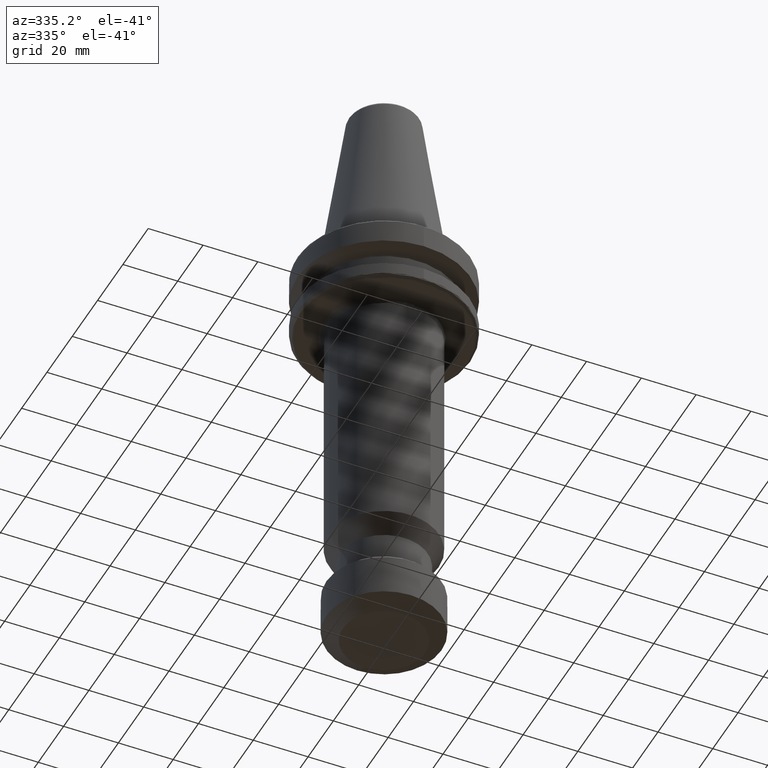
[diagram: clean part render]
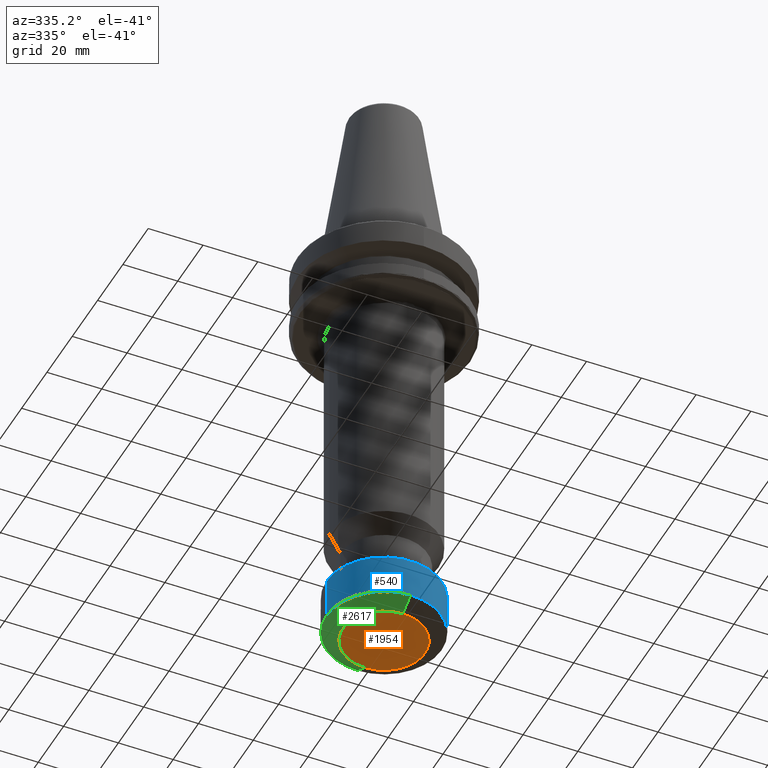
[diagram: same view with three faces highlighted in distinct colors, each labeled with its STEP entity id]
A machine part, auxiliary view with three faces highlighted in distinct colors.
Their STEP definitions:

[orange] entity #1954 — the highlighted planar face has unit normal (0, 0, 1).
#235 = ORIENTED_EDGE ( 'NONE', *, *, #1980, .T. ) ;
#290 = AXIS2_PLACEMENT_3D ( 'NONE', #3194, #3189, #3181 ) ;
#505 = CARTESIAN_POINT ( 'NONE',  ( 0.0000000000000000000, 1.204597519437111000E-029, -160.0000000000000000 ) ) ;
#510 = DIRECTION ( 'NONE',  ( -0.0000000000000000000, 9.251858538542973800E-016, -1.000000000000000000 ) ) ;
#513 = DIRECTION ( 'NONE',  ( 0.0000000000000000000, -1.000000000000000000, 0.0000000000000000000 ) ) ;
#665 = EDGE_LOOP ( 'NONE', ( #235, #2594 ) ) ;
#666 = CARTESIAN_POINT ( 'NONE',  ( 0.0000000000000000000, -14.99999999999997700, -160.0000000000000000 ) ) ;
#725 = EDGE_CURVE ( 'NONE', #941, #899, #2200, .T. ) ;
#740 = AXIS2_PLACEMENT_3D ( 'NONE', #3312, #3240, #3232 ) ;
#823 = CARTESIAN_POINT ( 'NONE',  ( 2.204364238465233900E-015, 14.99999999999997700, -160.0000000000000000 ) ) ;
#899 = VERTEX_POINT ( 'NONE', #666 ) ;
#941 = VERTEX_POINT ( 'NONE', #823 ) ;
#1317 = AXIS2_PLACEMENT_3D ( 'NONE', #505, #510, #513 ) ;
#1707 = FACE_OUTER_BOUND ( 'NONE', #665, .T. ) ;
#1954 = ADVANCED_FACE ( 'NONE', ( #1707 ), #3247, .F. ) ;
#1980 = EDGE_CURVE ( 'NONE', #899, #941, #3161, .T. ) ;
#2200 = CIRCLE ( 'NONE', #1317, 14.99999999999997700 ) ;
#2594 = ORIENTED_EDGE ( 'NONE', *, *, #725, .T. ) ;
#3161 = CIRCLE ( 'NONE', #290, 14.99999999999997700 ) ;
#3181 = DIRECTION ( 'NONE',  ( 0.0000000000000000000, -1.000000000000000000, 0.0000000000000000000 ) ) ;
#3189 = DIRECTION ( 'NONE',  ( -0.0000000000000000000, 9.251858538542973800E-016, -1.000000000000000000 ) ) ;
#3194 = CARTESIAN_POINT ( 'NONE',  ( 0.0000000000000000000, 1.204597519437111000E-029, -160.0000000000000000 ) ) ;
#3232 = DIRECTION ( 'NONE',  ( 1.000000000000000000, 0.0000000000000000000, 0.0000000000000000000 ) ) ;
#3240 = DIRECTION ( 'NONE',  ( 0.0000000000000000000, 0.0000000000000000000, 1.000000000000000000 ) ) ;
#3247 = PLANE ( 'NONE',  #740 ) ;
#3312 = CARTESIAN_POINT ( 'NONE',  ( -15.18000000000000100, -15.18000000000000100, -160.0000000000000000 ) ) ;

[blue] entity #540 — the highlighted cylindrical surface (partial cylindrical patch) has radius 21 mm, axis along (0, -0, 1).
#22 = CARTESIAN_POINT ( 'NONE',  ( 21.00000000000000000, 2.571758278209441700E-015, -141.5000000000000300 ) ) ;
#96 = ORIENTED_EDGE ( 'NONE', *, *, #3221, .F. ) ;
#137 = ORIENTED_EDGE ( 'NONE', *, *, #233, .T. ) ;
#153 = CYLINDRICAL_SURFACE ( 'NONE', #2322, 21.00000000000000000 ) ;
#214 = DIRECTION ( 'NONE',  ( 1.000000000000000000, 0.0000000000000000000, 0.0000000000000000000 ) ) ;
#233 = EDGE_CURVE ( 'NONE', #3114, #2721, #2238, .T. ) ;
#257 = ORIENTED_EDGE ( 'NONE', *, *, #1116, .F. ) ;
#477 = VECTOR ( 'NONE', #635, 1000.000000000000000 ) ;
#486 = DIRECTION ( 'NONE',  ( 1.000000000000000000, 0.0000000000000000000, 0.0000000000000000000 ) ) ;
#540 = ADVANCED_FACE ( 'NONE', ( #1288 ), #153, .T. ) ;
#613 = CARTESIAN_POINT ( 'NONE',  ( 21.00000000000000000, 0.0000000000000000000, -156.5358983850000500 ) ) ;
#635 = DIRECTION ( 'NONE',  ( 0.0000000000000000000, -0.0000000000000000000, 1.000000000000000000 ) ) ;
#733 = VECTOR ( 'NONE', #1037, 1000.000000000000000 ) ;
#832 = EDGE_CURVE ( 'NONE', #2233, #2653, #1780, .T. ) ;
#988 = CARTESIAN_POINT ( 'NONE',  ( -21.00000000000000000, 0.0000000000000000000, -141.5000000000000300 ) ) ;
#1025 = CARTESIAN_POINT ( 'NONE',  ( -21.00000000000000000, 2.571758278209441700E-015, -156.5358983850000500 ) ) ;
#1037 = DIRECTION ( 'NONE',  ( 0.0000000000000000000, -0.0000000000000000000, 1.000000000000000000 ) ) ;
#1065 = CIRCLE ( 'NONE', #1718, 20.99999999999999600 ) ;
#1098 = VERTEX_POINT ( 'NONE', #988 ) ;
#1116 = EDGE_CURVE ( 'NONE', #3114, #1098, #1353, .T. ) ;
#1163 = DIRECTION ( 'NONE',  ( 0.0000000000000000000, -0.0000000000000000000, 1.000000000000000000 ) ) ;
#1178 = CARTESIAN_POINT ( 'NONE',  ( 0.0000000000000000000, 0.0000000000000000000, -156.5358983850000500 ) ) ;
#1254 = EDGE_CURVE ( 'NONE', #2721, #2233, #1065, .T. ) ;
#1288 = FACE_OUTER_BOUND ( 'NONE', #1365, .T. ) ;
#1353 = LINE ( 'NONE', #1025, #733 ) ;
#1365 = EDGE_LOOP ( 'NONE', ( #257, #137, #2468, #1797, #96 ) ) ;
#1450 = DIRECTION ( 'NONE',  ( 1.000000000000000000, 0.0000000000000000000, 0.0000000000000000000 ) ) ;
#1718 = AXIS2_PLACEMENT_3D ( 'NONE', #1178, #3441, #1450 ) ;
#1780 = LINE ( 'NONE', #613, #477 ) ;
#1785 = CARTESIAN_POINT ( 'NONE',  ( 0.0000000000000000000, 0.0000000000000000000, -156.5358983850000500 ) ) ;
#1797 = ORIENTED_EDGE ( 'NONE', *, *, #832, .T. ) ;
#1833 = CIRCLE ( 'NONE', #3289, 20.99999999999999600 ) ;
#2233 = VERTEX_POINT ( 'NONE', #2919 ) ;
#2238 = CIRCLE ( 'NONE', #2887, 20.99999999999999600 ) ;
#2246 = DIRECTION ( 'NONE',  ( 1.000000000000000000, 0.0000000000000000000, 0.0000000000000000000 ) ) ;
#2251 = DIRECTION ( 'NONE',  ( 0.0000000000000000000, 0.0000000000000000000, 1.000000000000000000 ) ) ;
#2260 = CARTESIAN_POINT ( 'NONE',  ( 0.0000000000000000000, 0.0000000000000000000, -141.5000000000000300 ) ) ;
#2281 = CARTESIAN_POINT ( 'NONE',  ( 0.0000000000000000000, 0.0000000000000000000, -156.5358983850000500 ) ) ;
#2299 = CARTESIAN_POINT ( 'NONE',  ( 0.0000000000000000000, -21.00000000000006000, -156.5358983850000500 ) ) ;
#2322 = AXIS2_PLACEMENT_3D ( 'NONE', #2281, #1163, #486 ) ;
#2468 = ORIENTED_EDGE ( 'NONE', *, *, #1254, .T. ) ;
#2507 = CARTESIAN_POINT ( 'NONE',  ( -21.00000000000000000, 2.571758278209442100E-015, -156.5358983850000500 ) ) ;
#2653 = VERTEX_POINT ( 'NONE', #22 ) ;
#2721 = VERTEX_POINT ( 'NONE', #2299 ) ;
#2887 = AXIS2_PLACEMENT_3D ( 'NONE', #1785, #3121, #214 ) ;
#2919 = CARTESIAN_POINT ( 'NONE',  ( 20.99999999999999600, 0.0000000000000000000, -156.5358983850000500 ) ) ;
#3114 = VERTEX_POINT ( 'NONE', #2507 ) ;
#3121 = DIRECTION ( 'NONE',  ( 0.0000000000000000000, 0.0000000000000000000, 1.000000000000000000 ) ) ;
#3221 = EDGE_CURVE ( 'NONE', #1098, #2653, #1833, .T. ) ;
#3289 = AXIS2_PLACEMENT_3D ( 'NONE', #2260, #2251, #2246 ) ;
#3441 = DIRECTION ( 'NONE',  ( 0.0000000000000000000, 0.0000000000000000000, 1.000000000000000000 ) ) ;

[green] entity #2617 — the highlighted conical surface has half-angle 60 deg.
#100 = EDGE_LOOP ( 'NONE', ( #414, #3186, #857, #134, #1022 ) ) ;
#134 = ORIENTED_EDGE ( 'NONE', *, *, #233, .F. ) ;
#151 = CONICAL_SURFACE ( 'NONE', #1391, 15.00000000000000000, 1.047197551213821600 ) ;
#169 = DIRECTION ( 'NONE',  ( 0.0000000000000000000, -1.000000000000000000, -1.850371707708594400E-015 ) ) ;
#177 = CARTESIAN_POINT ( 'NONE',  ( 0.0000000000000000000, 0.0000000000000000000, -160.0000000000000000 ) ) ;
#214 = DIRECTION ( 'NONE',  ( 1.000000000000000000, 0.0000000000000000000, 0.0000000000000000000 ) ) ;
#233 = EDGE_CURVE ( 'NONE', #3114, #2721, #2238, .T. ) ;
#281 = VECTOR ( 'NONE', #3154, 1000.000000000000000 ) ;
#290 = AXIS2_PLACEMENT_3D ( 'NONE', #3194, #3189, #3181 ) ;
#302 = EDGE_CURVE ( 'NONE', #941, #1467, #2157, .T. ) ;
#414 = ORIENTED_EDGE ( 'NONE', *, *, #302, .F. ) ;
#485 = DIRECTION ( 'NONE',  ( 0.0000000000000000000, -0.8660254037930510400, 0.4999999999850828800 ) ) ;
#492 = CARTESIAN_POINT ( 'NONE',  ( 0.0000000000000000000, -15.00000000000000000, -160.0000000000000300 ) ) ;
#557 = LINE ( 'NONE', #492, #2536 ) ;
#666 = CARTESIAN_POINT ( 'NONE',  ( 0.0000000000000000000, -14.99999999999997700, -160.0000000000000000 ) ) ;
#756 = EDGE_CURVE ( 'NONE', #899, #2721, #557, .T. ) ;
#823 = CARTESIAN_POINT ( 'NONE',  ( 2.204364238465233900E-015, 14.99999999999997700, -160.0000000000000000 ) ) ;
#857 = ORIENTED_EDGE ( 'NONE', *, *, #756, .T. ) ;
#899 = VERTEX_POINT ( 'NONE', #666 ) ;
#901 = CIRCLE ( 'NONE', #1804, 20.99999999999999600 ) ;
#941 = VERTEX_POINT ( 'NONE', #823 ) ;
#1022 = ORIENTED_EDGE ( 'NONE', *, *, #2137, .F. ) ;
#1158 = DIRECTION ( 'NONE',  ( 0.0000000000000000000, -9.251858538542973800E-016, 1.000000000000000000 ) ) ;
#1391 = AXIS2_PLACEMENT_3D ( 'NONE', #177, #1158, #169 ) ;
#1467 = VERTEX_POINT ( 'NONE', #1714 ) ;
#1714 = CARTESIAN_POINT ( 'NONE',  ( 2.571758278209435000E-015, 20.99999999999994300, -156.5358983850000500 ) ) ;
#1785 = CARTESIAN_POINT ( 'NONE',  ( 0.0000000000000000000, 0.0000000000000000000, -156.5358983850000500 ) ) ;
#1804 = AXIS2_PLACEMENT_3D ( 'NONE', #2914, #2906, #2899 ) ;
#1980 = EDGE_CURVE ( 'NONE', #899, #941, #3161, .T. ) ;
#2137 = EDGE_CURVE ( 'NONE', #1467, #3114, #901, .T. ) ;
#2157 = LINE ( 'NONE', #2240, #281 ) ;
#2238 = CIRCLE ( 'NONE', #2887, 20.99999999999999600 ) ;
#2240 = CARTESIAN_POINT ( 'NONE',  ( 1.836970198721029600E-015, 15.00000000000000000, -159.9999999999999700 ) ) ;
#2299 = CARTESIAN_POINT ( 'NONE',  ( 0.0000000000000000000, -21.00000000000006000, -156.5358983850000500 ) ) ;
#2507 = CARTESIAN_POINT ( 'NONE',  ( -21.00000000000000000, 2.571758278209442100E-015, -156.5358983850000500 ) ) ;
#2536 = VECTOR ( 'NONE', #485, 1000.000000000000000 ) ;
#2617 = ADVANCED_FACE ( 'NONE', ( #3298 ), #151, .T. ) ;
#2721 = VERTEX_POINT ( 'NONE', #2299 ) ;
#2887 = AXIS2_PLACEMENT_3D ( 'NONE', #1785, #3121, #214 ) ;
#2899 = DIRECTION ( 'NONE',  ( 1.000000000000000000, 0.0000000000000000000, 0.0000000000000000000 ) ) ;
#2906 = DIRECTION ( 'NONE',  ( 0.0000000000000000000, 0.0000000000000000000, 1.000000000000000000 ) ) ;
#2914 = CARTESIAN_POINT ( 'NONE',  ( 0.0000000000000000000, 0.0000000000000000000, -156.5358983850000500 ) ) ;
#3114 = VERTEX_POINT ( 'NONE', #2507 ) ;
#3121 = DIRECTION ( 'NONE',  ( 0.0000000000000000000, 0.0000000000000000000, 1.000000000000000000 ) ) ;
#3154 = DIRECTION ( 'NONE',  ( 1.060575238735453500E-016, 0.8660254037930501500, 0.4999999999850844300 ) ) ;
#3161 = CIRCLE ( 'NONE', #290, 14.99999999999997700 ) ;
#3181 = DIRECTION ( 'NONE',  ( 0.0000000000000000000, -1.000000000000000000, 0.0000000000000000000 ) ) ;
#3186 = ORIENTED_EDGE ( 'NONE', *, *, #1980, .F. ) ;
#3189 = DIRECTION ( 'NONE',  ( -0.0000000000000000000, 9.251858538542973800E-016, -1.000000000000000000 ) ) ;
#3194 = CARTESIAN_POINT ( 'NONE',  ( 0.0000000000000000000, 1.204597519437111000E-029, -160.0000000000000000 ) ) ;
#3298 = FACE_OUTER_BOUND ( 'NONE', #100, .T. ) ;